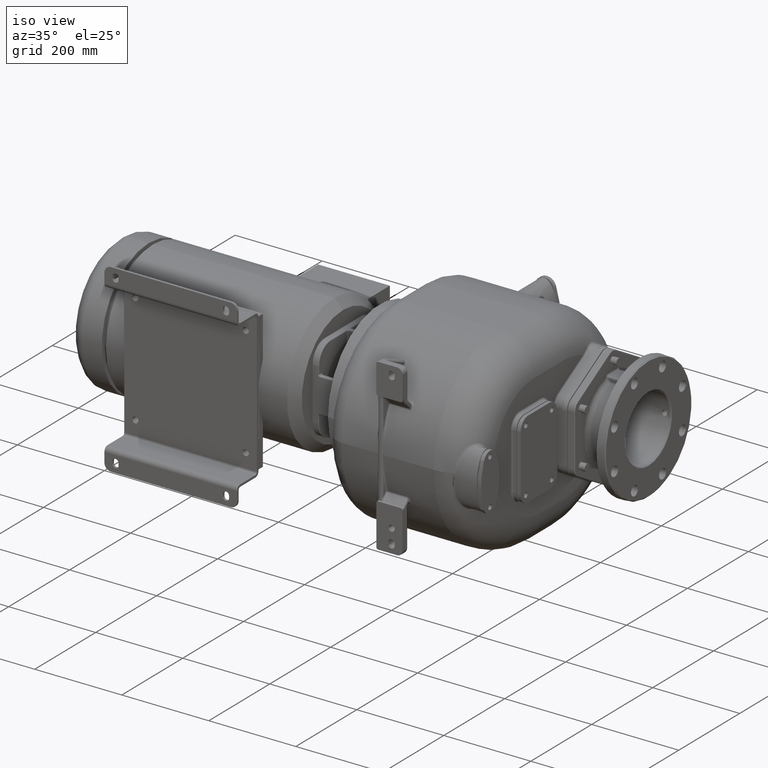
[diagram: clean part render]
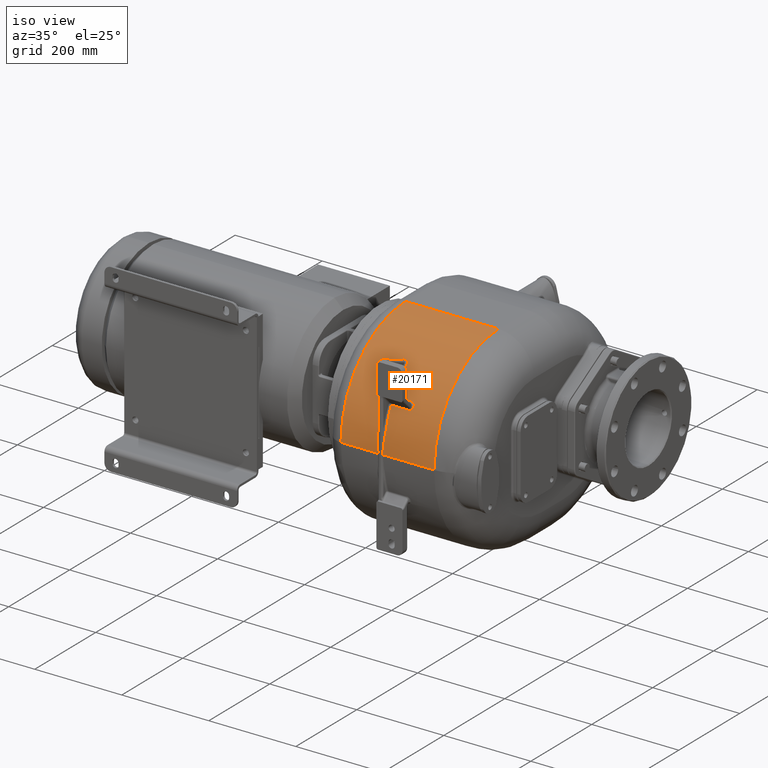
[diagram: same view with one face highlighted and labeled with its STEP entity id]
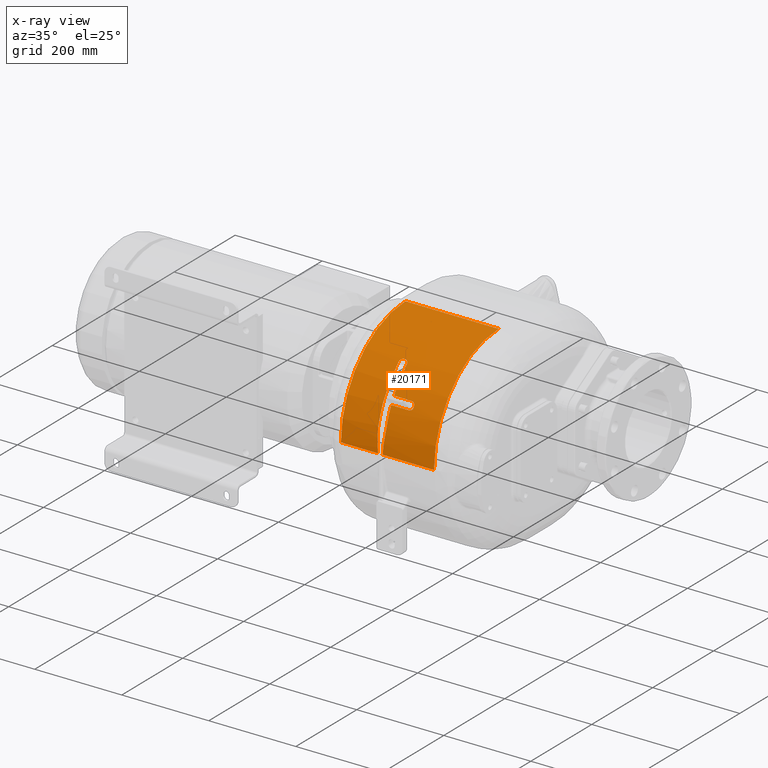
[diagram: x-ray of the same camera — body ghosted, the highlighted face saturated]
A machine part, iso view. The second image highlights one B-rep face of the part: STEP entity #20171.
The next image is the same camera in x-ray: the body ghosted, the highlighted face saturated — about 0% of this face is hidden behind the body in this view.
In plain terms, the highlighted cylindrical surface (partial cylindrical patch) has radius 212 mm, axis along (-1, 0, 0).
Its self-contained STEP definition (entity closure, byte-faithful):
#2213=DIRECTION('',(-9.999999999999E-1,-3.922041858622E-7,-4.513141593375E-11));
#2214=VECTOR('',#2213,8.512701665594E1);
#2215=CARTESIAN_POINT('',(-3.487298334407E1,5.000033387172E0,
-1.299999999617E1));
#2216=LINE('',#2215,#2214);
#2217=CARTESIAN_POINT('',(-1.2E2,2.17E2,-1.3E1));
#2218=DIRECTION('',(-1.E0,0.E0,0.E0));
#2219=DIRECTION('',(0.E0,-1.E0,0.E0));
#2220=AXIS2_PLACEMENT_3D('',#2217,#2218,#2219);
#2222=CARTESIAN_POINT('',(9.4E1,2.17E2,-1.3E1));
#2223=DIRECTION('',(1.E0,0.E0,0.E0));
#2224=DIRECTION('',(0.E0,0.E0,1.E0));
#2225=AXIS2_PLACEMENT_3D('',#2222,#2223,#2224);
#2227=DIRECTION('',(-1.E0,2.893217573782E-7,-2.821944856275E-11));
#2228=VECTOR('',#2227,1.181270166560E2);
#2229=CARTESIAN_POINT('',(9.4E1,5.E0,-1.300000000004E1));
#2230=LINE('',#2229,#2228);
#2231=CARTESIAN_POINT('',(-2.412701665602E1,5.000034176716E0,
-1.300000000338E1));
#2232=CARTESIAN_POINT('',(-2.412677425144E1,5.000064411701E0,
-1.237162745277E1));
#2233=CARTESIAN_POINT('',(-2.411535723867E1,5.005587830284E0,
-1.109724350928E1));
#2234=CARTESIAN_POINT('',(-2.406714353590E1,5.031925356394E0,
-9.147282612950E0));
#2235=CARTESIAN_POINT('',(-2.398490606292E1,5.078257220314E0,
-7.116007982804E0));
#2236=CARTESIAN_POINT('',(-2.386522206394E1,5.148100437059E0,
-4.975580684508E0));
#2237=CARTESIAN_POINT('',(-2.370355654741E1,5.246141662673E0,
-2.696057732538E0));
#2238=CARTESIAN_POINT('',(-2.349573835312E1,5.379657219867E0,
-2.315929024144E-1));
#2239=CARTESIAN_POINT('',(-2.323742179956E1,5.558259210553E0,2.462465935249E0));
#2240=CARTESIAN_POINT('',(-2.292451495860E1,5.796181275642E0,5.443850500275E0));
#2241=CARTESIAN_POINT('',(-2.256987694279E1,6.097435990249E0,8.625108674658E0));
#2242=CARTESIAN_POINT('',(-2.219588249925E1,6.457837124087E0,1.189250414593E1));
#2243=CARTESIAN_POINT('',(-2.182355145446E1,6.869646889473E0,1.515612858986E1));
#2244=CARTESIAN_POINT('',(-2.147244776413E1,7.319041217836E0,1.832379331602E1));
#2245=CARTESIAN_POINT('',(-2.115325002567E1,7.795832158027E0,2.136023318684E1));
#2246=CARTESIAN_POINT('',(-2.087127109073E1,8.292052318312E0,2.425216008936E1));
#2247=CARTESIAN_POINT('',(-2.062915357448E1,8.801257045566E0,2.699686308782E1));
#2248=CARTESIAN_POINT('',(-2.042756480443E1,9.318034853362E0,2.959600620637E1));
#2249=CARTESIAN_POINT('',(-2.026618323551E1,9.837876736388E0,3.205381006348E1));
#2250=CARTESIAN_POINT('',(-2.014390945827E1,1.035683111288E1,3.437491595962E1));
#2251=CARTESIAN_POINT('',(-2.005924917253E1,1.087114337286E1,3.656290352264E1));
#2252=CARTESIAN_POINT('',(-2.001031968690E1,1.137735410997E1,3.862111284008E1));
#2253=CARTESIAN_POINT('',(-1.999999281673E1,1.170766018576E1,3.990998583612E1));
#2254=CARTESIAN_POINT('',(-2.000000000003E1,1.187037656974E1,4.053349301459E1));
#2256=CARTESIAN_POINT('',(-2.E1,2.17E2,-1.3E1));
#2257=DIRECTION('',(-1.E0,0.E0,0.E0));
#2258=DIRECTION('',(0.E0,-9.675925925926E-1,2.525164841351E-1));
#2259=AXIS2_PLACEMENT_3D('',#2256,#2257,#2258);
#2261=DIRECTION('',(9.999999999975E-1,-2.003315182879E-6,1.009970252130E-6));
#2262=VECTOR('',#2261,4.100000002440E1);
#2263=CARTESIAN_POINT('',(-2.E1,2.769021856251E1,8.242435041482E1));
#2264=LINE('',#2263,#2262);
#2265=CARTESIAN_POINT('',(2.100000002430E1,2.769013642659E1,8.242439182360E1));
#2266=CARTESIAN_POINT('',(2.109300576867E1,2.769013946063E1,8.242437055612E1));
#2267=CARTESIAN_POINT('',(2.127962382726E1,2.769189080320E1,8.242758582931E1));
#2268=CARTESIAN_POINT('',(2.156170637136E1,2.769862104190E1,8.244104074505E1));
#2269=CARTESIAN_POINT('',(2.184493863127E1,2.771023700079E1,8.246404985416E1));
#2270=CARTESIAN_POINT('',(2.212863502047E1,2.772667185530E1,8.249663938084E1));
#2271=CARTESIAN_POINT('',(2.241203433552E1,2.774796142819E1,8.253882316192E1));
#2272=CARTESIAN_POINT('',(2.269440190692E1,2.777405294226E1,8.259049275679E1));
#2273=CARTESIAN_POINT('',(2.297500795991E1,2.780489637953E1,8.265152669118E1));
#2274=CARTESIAN_POINT('',(2.325308994288E1,2.784041311955E1,8.272174793532E1));
#2275=CARTESIAN_POINT('',(2.352823343610E1,2.788055827719E1,8.280104226065E1));
#2276=CARTESIAN_POINT('',(2.380009588734E1,2.792530656670E1,8.288933153921E1));
#2277=CARTESIAN_POINT('',(2.406829487834E1,2.797463229748E1,8.298653390671E1));
#2278=CARTESIAN_POINT('',(2.433248565283E1,2.802854019940E1,8.309262459145E1));
#2279=CARTESIAN_POINT('',(2.459263923461E1,2.808703679564E1,8.320757926381E1));
#2280=CARTESIAN_POINT('',(2.484869084842E1,2.815011017752E1,8.333133451695E1));
#2281=CARTESIAN_POINT('',(2.510061514790E1,2.821779661157E1,8.346391845280E1));
#2282=CARTESIAN_POINT('',(2.534793853888E1,2.829002955504E1,8.360515488528E1));
#2283=CARTESIAN_POINT('',(2.558999630007E1,2.836667091799E1,8.375472646364E1));
#2284=CARTESIAN_POINT('',(2.582617793122E1,2.844757639330E1,8.391230329438E1));
#2285=CARTESIAN_POINT('',(2.605591305350E1,2.853258886942E1,8.407753080825E1));
#2286=CARTESIAN_POINT('',(2.627901898315E1,2.862170074547E1,8.425034461750E1));
#2287=CARTESIAN_POINT('',(2.649531924484E1,2.871488729278E1,8.443064527765E1));
#2288=CARTESIAN_POINT('',(2.670471961568E1,2.881213145989E1,8.461834673342E1));
#2289=CARTESIAN_POINT('',(2.690692671967E1,2.891335046959E1,8.481323492863E1));
#2290=CARTESIAN_POINT('',(2.710151137672E1,2.901838087778E1,8.501494113519E1));
#2291=CARTESIAN_POINT('',(2.728808932551E1,2.912706389510E1,8.522310735834E1));
#2292=CARTESIAN_POINT('',(2.746627656780E1,2.923922211475E1,8.543734214313E1));
#2293=CARTESIAN_POINT('',(2.763581067328E1,2.935474008828E1,8.565737457966E1));
#2294=CARTESIAN_POINT('',(2.779641726124E1,2.947350456483E1,8.588293938124E1));
#2295=CARTESIAN_POINT('',(2.794785607671E1,2.959539817814E1,8.611376515421E1));
#2296=CARTESIAN_POINT('',(2.808993723250E1,2.972028071056E1,8.634953931403E1));
#2297=CARTESIAN_POINT('',(2.822243550209E1,2.984798289412E1,8.658989732943E1));
#2298=CARTESIAN_POINT('',(2.834514228541E1,2.997833254975E1,8.683447271049E1));
#2299=CARTESIAN_POINT('',(2.845785612075E1,3.011115178293E1,8.708289196431E1));
#2300=CARTESIAN_POINT('',(2.856037723862E1,3.024624757566E1,8.733475742795E1));
#2301=CARTESIAN_POINT('',(2.865251737336E1,3.038341873998E1,8.758966076425E1));
#2302=CARTESIAN_POINT('',(2.873409764708E1,3.052245957089E1,8.784719009992E1));
#2303=CARTESIAN_POINT('',(2.880496853396E1,3.066316039514E1,8.810693114042E1));
#2304=CARTESIAN_POINT('',(2.886505443869E1,3.080531006751E1,8.836847242988E1));
#2305=CARTESIAN_POINT('',(2.891428587463E1,3.094869318828E1,8.863139852648E1));
#2306=CARTESIAN_POINT('',(2.895261532087E1,3.109309117104E1,8.889529890708E1));
#2307=CARTESIAN_POINT('',(2.897999257722E1,3.123828349406E1,8.915974498661E1));
#2308=CARTESIAN_POINT('',(2.899644740496E1,3.138404611709E1,8.942438189462E1));
#2309=CARTESIAN_POINT('',(2.900000446744E1,3.148145609983E1,8.960052254986E1));
#2310=CARTESIAN_POINT('',(2.899999999973E1,3.153019789379E1,8.968857484883E1));
#2312=CARTESIAN_POINT('',(2.9E1,2.17E2,-1.3E1));
#2313=DIRECTION('',(-1.E0,0.E0,0.E0));
#2314=DIRECTION('',(0.E0,-8.748576457011E-1,4.843801190784E-1));
#2315=AXIS2_PLACEMENT_3D('',#2312,#2313,#2314);
#2317=CARTESIAN_POINT('',(2.899999999998E1,3.252667015918E1,9.146814129177E1));
#2318=CARTESIAN_POINT('',(2.900003071213E1,3.257569402916E1,9.155468504804E1));
#2319=CARTESIAN_POINT('',(2.899647680225E1,3.267388370671E1,9.172780947850E1));
#2320=CARTESIAN_POINT('',(2.898029898864E1,3.282187357057E1,9.198784308193E1));
#2321=CARTESIAN_POINT('',(2.895321536720E1,3.297003653321E1,9.224733882145E1));
#2322=CARTESIAN_POINT('',(2.891528449959E1,3.311804513091E1,9.250571571432E1));
#2323=CARTESIAN_POINT('',(2.886659981461E1,3.326551861548E1,9.276232471685E1));
#2324=CARTESIAN_POINT('',(2.880731791595E1,3.341207762850E1,9.301652305036E1));
#2325=CARTESIAN_POINT('',(2.873762389401E1,3.355740245065E1,9.326778047908E1));
#2326=CARTESIAN_POINT('',(2.865762347228E1,3.370137158997E1,9.351591389640E1));
#2327=CARTESIAN_POINT('',(2.856742862142E1,3.384382702495E1,9.376067944499E1));
#2328=CARTESIAN_POINT('',(2.846709676840E1,3.398465915033E1,9.400191894171E1));
#2329=CARTESIAN_POINT('',(2.835667786110E1,3.412381299177E1,9.423956893640E1));
#2330=CARTESIAN_POINT('',(2.823621918487E1,3.426125499307E1,9.447360256879E1));
#2331=CARTESIAN_POINT('',(2.810587882856E1,3.439676589667E1,9.470367787615E1));
#2332=CARTESIAN_POINT('',(2.796600796244E1,3.452996227021E1,9.492917913361E1));
#2333=CARTESIAN_POINT('',(2.781698929852E1,3.466049386639E1,9.514955316310E1));
#2334=CARTESIAN_POINT('',(2.765915256588E1,3.478810143702E1,9.536440513644E1));
#2335=CARTESIAN_POINT('',(2.749277121964E1,3.491258751967E1,9.557344697894E1));
#2336=CARTESIAN_POINT('',(2.731817788704E1,3.503372789978E1,9.577634797927E1));
#2337=CARTESIAN_POINT('',(2.713542889917E1,3.515148391044E1,9.597308927214E1));
#2338=CARTESIAN_POINT('',(2.694449469843E1,3.526585220281E1,9.616370956678E1));
#2339=CARTESIAN_POINT('',(2.674539378231E1,3.537683813537E1,9.634826026046E1));
#2340=CARTESIAN_POINT('',(2.653841749238E1,3.548425460236E1,9.652647207763E1));
#2341=CARTESIAN_POINT('',(2.632389928888E1,3.558790571776E1,9.669806253179E1));
#2342=CARTESIAN_POINT('',(2.610218174647E1,3.568759765190E1,9.686275337527E1));
#2343=CARTESIAN_POINT('',(2.587382970491E1,3.578305706537E1,9.702013612103E1));
#2344=CARTESIAN_POINT('',(2.563946122986E1,3.587402683179E1,9.716983043139E1));
#2345=CARTESIAN_POINT('',(2.539961704887E1,3.596031653644E1,9.731156640975E1));
#2346=CARTESIAN_POINT('',(2.515427748168E1,3.604194018687E1,9.744540870030E1));
#2347=CARTESIAN_POINT('',(2.490342696093E1,3.611886651521E1,9.757134510979E1));
#2348=CARTESIAN_POINT('',(2.464713600438E1,3.619108000313E1,9.768938705662E1));
#2349=CARTESIAN_POINT('',(2.438563512310E1,3.625850368498E1,9.779944342210E1));
#2350=CARTESIAN_POINT('',(2.411903936263E1,3.632107481649E1,9.790144448452E1));
#2351=CARTESIAN_POINT('',(2.384783409492E1,3.637863515596E1,9.799516310301E1));
#2352=CARTESIAN_POINT('',(2.357292607950E1,3.643096746391E1,9.808027491582E1));
#2353=CARTESIAN_POINT('',(2.329527969978E1,3.647789988062E1,9.815652807858E1));
#2354=CARTESIAN_POINT('',(2.301528397107E1,3.651939312480E1,9.822388389708E1));
#2355=CARTESIAN_POINT('',(2.273293672181E1,3.655545580860E1,9.828237883627E1));
#2356=CARTESIAN_POINT('',(2.244827253503E1,3.658605593047E1,9.833197926503E1));
#2357=CARTESIAN_POINT('',(2.216152684918E1,3.661115448759E1,9.837264215800E1));
#2358=CARTESIAN_POINT('',(2.187302459181E1,3.663073437324E1,9.840433933323E1));
#2359=CARTESIAN_POINT('',(2.158308035536E1,3.664475470536E1,9.842706740631E1));
#2360=CARTESIAN_POINT('',(2.129197446042E1,3.665323365272E1,9.844066847361E1));
#2361=CARTESIAN_POINT('',(2.109742144004E1,3.665505242121E1,9.844391325200E1));
#2362=CARTESIAN_POINT('',(2.099999998002E1,3.665506377796E1,9.844391281594E1));
#2364=DIRECTION('',(-9.999999999971E-1,2.041802818780E-6,-1.261698355727E-6));
#2365=VECTOR('',#2364,4.099999998014E1);
#2366=CARTESIAN_POINT('',(2.099999998002E1,3.665506377796E1,9.844391281594E1));
#2367=LINE('',#2366,#2365);
#2368=CARTESIAN_POINT('',(-2.E1,2.17E2,-1.3E1));
#2369=DIRECTION('',(-1.E0,0.E0,0.E0));
#2370=DIRECTION('',(0.E0,-8.506832665458E-1,5.256785900329E-1));
#2371=AXIS2_PLACEMENT_3D('',#2368,#2369,#2370);
#2373=CARTESIAN_POINT('',(-2.000000000424E1,7.867629360068E1,1.476564870725E2));
#2374=CARTESIAN_POINT('',(-2.000000300508E1,7.875929237307E1,1.477279553283E2));
#2375=CARTESIAN_POINT('',(-2.000356006508E1,7.892537370747E1,1.478709224220E2));
#2376=CARTESIAN_POINT('',(-2.002070724317E1,7.917542919705E1,1.480851279639E2));
#2377=CARTESIAN_POINT('',(-2.004912358653E1,7.942550598528E1,1.482987787121E2));
#2378=CARTESIAN_POINT('',(-2.008891918470E1,7.967522689771E1,1.485114299994E2));
#2379=CARTESIAN_POINT('',(-2.013997137254E1,7.992407177537E1,1.487226802361E2));
#2380=CARTESIAN_POINT('',(-2.020219071558E1,8.017154839855E1,1.489321140338E2));
#2381=CARTESIAN_POINT('',(-2.027543883501E1,8.041716085607E1,1.491393293652E2));
#2382=CARTESIAN_POINT('',(-2.035954007576E1,8.066041002122E1,1.493439234135E2));
#2383=CARTESIAN_POINT('',(-2.045430614135E1,8.090087588150E1,1.495455652687E2));
#2384=CARTESIAN_POINT('',(-2.055953843785E1,8.113818546995E1,1.497439668599E2));
#2385=CARTESIAN_POINT('',(-2.067500944388E1,8.137196859610E1,1.499388457171E2));
#2386=CARTESIAN_POINT('',(-2.080046911001E1,8.160187090486E1,1.501299354936E2));
#2387=CARTESIAN_POINT('',(-2.093557386386E1,8.182745998013E1,1.503169079600E2));
#2388=CARTESIAN_POINT('',(-2.107996010618E1,8.204829657688E1,1.504994325632E2));
#2389=CARTESIAN_POINT('',(-2.123322211094E1,8.226392717712E1,1.506771701274E2));
#2390=CARTESIAN_POINT('',(-2.139496609971E1,8.247398502500E1,1.508498558116E2));
#2391=CARTESIAN_POINT('',(-2.156490708649E1,8.267827486695E1,1.510173671523E2));
#2392=CARTESIAN_POINT('',(-2.174274564514E1,8.287659205087E1,1.511795743359E2));
#2393=CARTESIAN_POINT('',(-2.192819398809E1,8.306876141227E1,1.513363719581E2));
#2394=CARTESIAN_POINT('',(-2.212093207052E1,8.325459330801E1,1.514876428396E2));
#2395=CARTESIAN_POINT('',(-2.232061867215E1,8.343390817069E1,1.516332780162E2));
#2396=CARTESIAN_POINT('',(-2.252690223866E1,8.360654309691E1,1.517731818474E2));
#2397=CARTESIAN_POINT('',(-2.273939500535E1,8.377230617009E1,1.519072347932E2));
#2398=CARTESIAN_POINT('',(-2.295748559067E1,8.393085152211E1,1.520351929253E2));
#2399=CARTESIAN_POINT('',(-2.318053902209E1,8.408186894491E1,1.521568415867E2));
#2400=CARTESIAN_POINT('',(-2.340785375583E1,8.422505965342E1,1.522719753555E2));
#2401=CARTESIAN_POINT('',(-2.363894248897E1,8.436031733052E1,1.523805430840E2));
#2402=CARTESIAN_POINT('',(-2.387400646042E1,8.448791323641E1,1.524827944022E2));
#2403=CARTESIAN_POINT('',(-2.411318216963E1,8.460800680410E1,1.525788861486E2));
#2404=CARTESIAN_POINT('',(-2.435683606127E1,8.472078010397E1,1.526689906940E2));
#2405=CARTESIAN_POINT('',(-2.460462803171E1,8.482617066366E1,1.527530828151E2));
#2406=CARTESIAN_POINT('',(-2.485565920977E1,8.492391841487E1,1.528309786126E2));
#2407=CARTESIAN_POINT('',(-2.510916457280E1,8.501384943203E1,1.529025619859E2));
#2408=CARTESIAN_POINT('',(-2.536430464549E1,8.509580513734E1,1.529677278262E2));
#2409=CARTESIAN_POINT('',(-2.562089836156E1,8.516985370360E1,1.530265496628E2));
#2410=CARTESIAN_POINT('',(-2.587886715119E1,8.523604216770E1,1.530790821241E2));
#2411=CARTESIAN_POINT('',(-2.613814312230E1,8.529438410514E1,1.531253512666E2));
#2412=CARTESIAN_POINT('',(-2.639875631103E1,8.534483926427E1,1.531653389082E2));
#2413=CARTESIAN_POINT('',(-2.666090716110E1,8.538747176003E1,1.531991067760E2));
#2414=CARTESIAN_POINT('',(-2.692469402898E1,8.542247315485E1,1.532268192265E2));
#2415=CARTESIAN_POINT('',(-2.719027714310E1,8.544989264548E1,1.532485120796E2));
#2416=CARTESIAN_POINT('',(-2.745783499320E1,8.546977178165E1,1.532642651316E2));
#2417=CARTESIAN_POINT('',(-2.772753475144E1,8.548180950227E1,1.532736922518E2));
#2418=CARTESIAN_POINT('',(-2.790892200939E1,8.548497917117E1,1.532764351159E2));
#2419=CARTESIAN_POINT('',(-2.800000007E1,8.548505803682E1,1.532764531046E2));
#2421=DIRECTION('',(-9.999999999270E-1,-7.499656473425E-6,9.477488548443E-6));
#2422=VECTOR('',#2421,3.000000021987E0);
#2423=CARTESIAN_POINT('',(-2.800000007E1,8.548505803682E1,1.532764531046E2));
#2424=LINE('',#2423,#2422);
#2425=CARTESIAN_POINT('',(-3.100000009177E1,8.548503553785E1,1.532764815371E2));
#2426=CARTESIAN_POINT('',(-3.108533750128E1,8.548510486051E1,1.532764973115E2));
#2427=CARTESIAN_POINT('',(-3.125709387137E1,8.548239267476E1,1.532741707689E2));
#2428=CARTESIAN_POINT('',(-3.151838619277E1,8.547171619855E1,1.532657986314E2));
#2429=CARTESIAN_POINT('',(-3.178210023370E1,8.545286775719E1,1.532508673783E2));
#2430=CARTESIAN_POINT('',(-3.204741836309E1,8.542599006075E1,1.532296026231E2));
#2431=CARTESIAN_POINT('',(-3.231343360197E1,8.539106068980E1,1.532019488790E2));
#2432=CARTESIAN_POINT('',(-3.257925295759E1,8.534817055429E1,1.531679783077E2));
#2433=CARTESIAN_POINT('',(-3.284399693382E1,8.529743235899E1,1.531277679446E2));
#2434=CARTESIAN_POINT('',(-3.310670331137E1,8.523902954687E1,1.530814521953E2));
#2435=CARTESIAN_POINT('',(-3.336701205350E1,8.517303652702E1,1.530290767980E2));
#2436=CARTESIAN_POINT('',(-3.362473306884E1,8.509944973586E1,1.529706241857E2));
#2437=CARTESIAN_POINT('',(-3.387957420151E1,8.501822950926E1,1.529060462723E2));
#2438=CARTESIAN_POINT('',(-3.413130216124E1,8.492932939608E1,1.528352877051E2));
#2439=CARTESIAN_POINT('',(-3.438028061783E1,8.483266996003E1,1.527582648904E2));
#2440=CARTESIAN_POINT('',(-3.462673631354E1,8.472811059340E1,1.526748433028E2));
#2441=CARTESIAN_POINT('',(-3.487095966955E1,8.461540581198E1,1.525848020596E2));
#2442=CARTESIAN_POINT('',(-3.511263964513E1,8.449450898982E1,1.524880762438E2));
#2443=CARTESIAN_POINT('',(-3.535082592995E1,8.436572122109E1,1.523848775594E2));
#2444=CARTESIAN_POINT('',(-3.558473346457E1,8.422932723211E1,1.522754041101E2));
#2445=CARTESIAN_POINT('',(-3.581348965206E1,8.408572998745E1,1.521599488790E2));
#2446=CARTESIAN_POINT('',(-3.603676196891E1,8.393502612619E1,1.520385585651E2));
#2447=CARTESIAN_POINT('',(-3.625446361375E1,8.377717691760E1,1.519111692982E2));
#2448=CARTESIAN_POINT('',(-3.646646200593E1,8.361216750878E1,1.517777346102E2));
#2449=CARTESIAN_POINT('',(-3.667257820882E1,8.343999389593E1,1.516382149682E2));
#2450=CARTESIAN_POINT('',(-3.687243560646E1,8.326081487587E1,1.514927014286E2));
#2451=CARTESIAN_POINT('',(-3.706566657579E1,8.307480405723E1,1.513412966318E2));
#2452=CARTESIAN_POINT('',(-3.725190547389E1,8.288214716559E1,1.511841127403E2));
#2453=CARTESIAN_POINT('',(-3.743073016039E1,8.268310291470E1,1.510213214816E2));
#2454=CARTESIAN_POINT('',(-3.760164365558E1,8.247805252799E1,1.508531957916E2));
#2455=CARTESIAN_POINT('',(-3.776420271587E1,8.226735660553E1,1.506799934742E2));
#2456=CARTESIAN_POINT('',(-3.791797958341E1,8.205137991253E1,1.505019776439E2));
#2457=CARTESIAN_POINT('',(-3.806266546398E1,8.183040248410E1,1.503193434160E2));
#2458=CARTESIAN_POINT('',(-3.819798605969E1,8.160468925606E1,1.501322748147E2));
#2459=CARTESIAN_POINT('',(-3.832367492834E1,8.137452887147E1,1.499409771283E2));
#2460=CARTESIAN_POINT('',(-3.843947266046E1,8.114022867767E1,1.497456730498E2));
#2461=CARTESIAN_POINT('',(-3.854507189060E1,8.090224907329E1,1.495467156226E2));
#2462=CARTESIAN_POINT('',(-3.864020126773E1,8.066106119659E1,1.493444708857E2));
#2463=CARTESIAN_POINT('',(-3.872462625339E1,8.041714732317E1,1.491393184772E2));
#2464=CARTESIAN_POINT('',(-3.879811084529E1,8.017098578219E1,1.489316391148E2));
#2465=CARTESIAN_POINT('',(-3.886045693390E1,7.992309254300E1,1.487218503321E2));
#2466=CARTESIAN_POINT('',(-3.891152188574E1,7.967399002763E1,1.485103792618E2));
#2467=CARTESIAN_POINT('',(-3.895121893412E1,7.942419965093E1,1.482976616211E2));
#2468=CARTESIAN_POINT('',(-3.897949478831E1,7.917426896931E1,1.480841456988E2));
#2469=CARTESIAN_POINT('',(-3.899640926628E1,7.892464558532E1,1.478702570802E2));
#2470=CARTESIAN_POINT('',(-3.900002108310E1,7.875896946983E1,1.477277634023E2));
#2471=CARTESIAN_POINT('',(-3.899999999973E1,7.867623511742E1,1.476565550205E2));
#2473=CARTESIAN_POINT('',(-3.9E1,2.17E2,-1.3E1));
#2474=DIRECTION('',(1.E0,0.E0,0.E0));
#2475=DIRECTION('',(0.E0,-6.524706428670E-1,7.578140010561E-1));
#2476=AXIS2_PLACEMENT_3D('',#2473,#2474,#2475);
#2478=CARTESIAN_POINT('',(-3.899999999996E1,1.187037643904E1,4.053349305294E1));
#2479=CARTESIAN_POINT('',(-3.900000907332E1,1.170769566159E1,3.991011959754E1));
#2480=CARTESIAN_POINT('',(-3.898969232779E1,1.137745609296E1,3.862151447746E1));
#2481=CARTESIAN_POINT('',(-3.894076674609E1,1.087134142215E1,3.656372079811E1));
#2482=CARTESIAN_POINT('',(-3.885615445304E1,1.035710850873E1,3.437611984479E1));
#2483=CARTESIAN_POINT('',(-3.873389735021E1,9.838209090207E0,3.205533393687E1));
#2484=CARTESIAN_POINT('',(-3.857256830406E1,9.318393911111E0,2.959775051926E1));
#2485=CARTESIAN_POINT('',(-3.837100986120E1,8.801651428835E0,2.699891335687E1));
#2486=CARTESIAN_POINT('',(-3.812893534273E1,8.292445202811E0,2.425434746463E1));
#2487=CARTESIAN_POINT('',(-3.784702461781E1,7.796273948046E0,2.136293112533E1));
#2488=CARTESIAN_POINT('',(-3.752778905784E1,7.319383635696E0,1.832606043922E1));
#2489=CARTESIAN_POINT('',(-3.717688023497E1,6.870138747879E0,1.515979033307E1));
#2490=CARTESIAN_POINT('',(-3.680434859035E1,6.458094466158E0,1.189475833157E1));
#2491=CARTESIAN_POINT('',(-3.643040314833E1,6.097664133206E0,8.627225481505E0));
#2492=CARTESIAN_POINT('',(-3.607591983815E1,5.796557127237E0,5.448192840503E0));
#2493=CARTESIAN_POINT('',(-3.576257875842E1,5.558237787799E0,2.462524712840E0));
#2494=CARTESIAN_POINT('',(-3.550395899935E1,5.379398930726E0,
-2.357358934041E-1));
#2495=CARTESIAN_POINT('',(-3.529616261380E1,5.245935876339E0,
-2.700373205626E0));
#2496=CARTESIAN_POINT('',(-3.513456714352E1,5.147995887590E0,
-4.978480077484E0));
#2497=CARTESIAN_POINT('',(-3.501489865767E1,5.078217722262E0,
-7.117563784723E0));
#2498=CARTESIAN_POINT('',(-3.493274438260E1,5.031914943044E0,
-9.147961815581E0));
#2499=CARTESIAN_POINT('',(-3.488460370730E1,5.005588489130E0,
-1.109738425132E1));
#2500=CARTESIAN_POINT('',(-3.487321845199E1,5.000062699675E0,
-1.237163655648E1));
#2501=CARTESIAN_POINT('',(-3.487298334407E1,5.000033387172E0,
-1.299999999617E1));
#2771=CARTESIAN_POINT('',(-2.412701665602E1,5.000034176716E0,
-1.300000000338E1));
#10621=DIRECTION('',(1.E0,2.007847678359E-12,0.E0));
#10622=VECTOR('',#10621,2.14E2);
#10623=CARTESIAN_POINT('',(-1.2E2,2.17E2,1.99E2));
#10624=LINE('',#10623,#10622);
#15757=CARTESIAN_POINT('',(-1.2E2,2.17E2,1.99E2));
#15758=CARTESIAN_POINT('',(9.4E1,2.170000000004E2,1.99E2));
#15759=VERTEX_POINT('',#15757);
#15760=VERTEX_POINT('',#15758);
#15799=CARTESIAN_POINT('',(-1.2E2,5.E0,-1.3E1));
#15800=VERTEX_POINT('',#15799);
#15817=CARTESIAN_POINT('',(9.4E1,5.E0,-1.3E1));
#15818=VERTEX_POINT('',#15817);
#16258=CARTESIAN_POINT('',(-3.487298334407E1,5.000033387172E0,
-1.299999999617E1));
#16259=VERTEX_POINT('',#16258);
#16311=VERTEX_POINT('',#2265);
#16312=VERTEX_POINT('',#2310);
#16315=CARTESIAN_POINT('',(2.9E1,3.252667419649E1,9.146813900415E1));
#16316=VERTEX_POINT('',#16315);
#16319=VERTEX_POINT('',#2362);
#16321=CARTESIAN_POINT('',(-2.E1,3.665514749188E1,9.844386108631E1));
#16322=VERTEX_POINT('',#16321);
#16327=CARTESIAN_POINT('',(-2.E1,7.867622371219E1,1.476565682239E2));
#16328=VERTEX_POINT('',#16327);
#16331=VERTEX_POINT('',#2419);
#16333=CARTESIAN_POINT('',(-3.100000009177E1,8.548503553785E1,
1.532764815371E2));
#16334=VERTEX_POINT('',#16333);
#16335=VERTEX_POINT('',#2471);
#16336=CARTESIAN_POINT('',(-3.9E1,1.187037037037E1,4.053349463664E1));
#16337=VERTEX_POINT('',#16336);
#16370=VERTEX_POINT('',#2771);
#16372=VERTEX_POINT('',#2254);
#16374=CARTESIAN_POINT('',(-2.E1,2.769021856252E1,8.242435041483E1));
#16375=VERTEX_POINT('',#16374);
#20129=CARTESIAN_POINT('',(-1.56E2,2.17E2,-1.3E1));
#20130=DIRECTION('',(-1.E0,0.E0,0.E0));
#20131=DIRECTION('',(0.E0,0.E0,1.E0));
#20132=AXIS2_PLACEMENT_3D('',#20129,#20130,#20131);
#20133=CYLINDRICAL_SURFACE('',#20132,2.12E2);
#20135=ORIENTED_EDGE('',*,*,#20134,.T.);
#20136=ORIENTED_EDGE('',*,*,#20120,.T.);
#20138=ORIENTED_EDGE('',*,*,#20137,.T.);
#20140=ORIENTED_EDGE('',*,*,#20139,.T.);
#20142=ORIENTED_EDGE('',*,*,#20141,.T.);
#20144=ORIENTED_EDGE('',*,*,#20143,.T.);
#20146=ORIENTED_EDGE('',*,*,#20145,.T.);
#20148=ORIENTED_EDGE('',*,*,#20147,.T.);
#20150=ORIENTED_EDGE('',*,*,#20149,.T.);
#20152=ORIENTED_EDGE('',*,*,#20151,.T.);
#20154=ORIENTED_EDGE('',*,*,#20153,.T.);
#20156=ORIENTED_EDGE('',*,*,#20155,.T.);
#20158=ORIENTED_EDGE('',*,*,#20157,.T.);
#20160=ORIENTED_EDGE('',*,*,#20159,.T.);
#20162=ORIENTED_EDGE('',*,*,#20161,.T.);
#20164=ORIENTED_EDGE('',*,*,#20163,.T.);
#20166=ORIENTED_EDGE('',*,*,#20165,.T.);
#20168=ORIENTED_EDGE('',*,*,#20167,.T.);
#20169=EDGE_LOOP('',(#20135,#20136,#20138,#20140,#20142,#20144,#20146,#20148,
#20150,#20152,#20154,#20156,#20158,#20160,#20162,#20164,#20166,#20168));
#20170=FACE_OUTER_BOUND('',#20169,.F.);
#20171=ADVANCED_FACE('',(#20170),#20133,.T.);
#2221=CIRCLE('',#2220,2.12E2);
#2226=CIRCLE('',#2225,2.12E2);
#2255=B_SPLINE_CURVE_WITH_KNOTS('',3,(#2231,#2232,#2233,#2234,#2235,#2236,#2237,
#2238,#2239,#2240,#2241,#2242,#2243,#2244,#2245,#2246,#2247,#2248,#2249,#2250,
#2251,#2252,#2253,#2254),.UNSPECIFIED.,.F.,.F.,(4,1,1,1,1,1,1,1,1,1,1,1,1,1,1,1,
1,1,1,1,1,4),(0.E0,4.761904761905E-2,9.523809523810E-2,1.428571428571E-1,
1.904761904762E-1,2.380952380952E-1,2.857142857143E-1,3.333333333333E-1,
3.809523809524E-1,4.285714285714E-1,4.761904761905E-1,5.238095238095E-1,
5.714285714286E-1,6.190476190476E-1,6.666666666667E-1,7.142857142857E-1,
7.619047619048E-1,8.095238095238E-1,8.571428571429E-1,9.047619047619E-1,
9.523809523810E-1,1.E0),.UNSPECIFIED.);
#2260=CIRCLE('',#2259,2.12E2);
#2311=B_SPLINE_CURVE_WITH_KNOTS('',3,(#2265,#2266,#2267,#2268,#2269,#2270,#2271,
#2272,#2273,#2274,#2275,#2276,#2277,#2278,#2279,#2280,#2281,#2282,#2283,#2284,
#2285,#2286,#2287,#2288,#2289,#2290,#2291,#2292,#2293,#2294,#2295,#2296,#2297,
#2298,#2299,#2300,#2301,#2302,#2303,#2304,#2305,#2306,#2307,#2308,#2309,#2310),
.UNSPECIFIED.,.F.,.F.,(4,1,1,1,1,1,1,1,1,1,1,1,1,1,1,1,1,1,1,1,1,1,1,1,1,1,1,1,
1,1,1,1,1,1,1,1,1,1,1,1,1,1,1,4),(0.E0,2.325581395349E-2,4.651162790698E-2,
6.976744186047E-2,9.302325581395E-2,1.162790697674E-1,1.395348837209E-1,
1.627906976744E-1,1.860465116279E-1,2.093023255814E-1,2.325581395349E-1,
2.558139534884E-1,2.790697674419E-1,3.023255813953E-1,3.255813953488E-1,
3.488372093023E-1,3.720930232558E-1,3.953488372093E-1,4.186046511628E-1,
4.418604651163E-1,4.651162790698E-1,4.883720930233E-1,5.116279069767E-1,
5.348837209302E-1,5.581395348837E-1,5.813953488372E-1,6.046511627907E-1,
6.279069767442E-1,6.511627906977E-1,6.744186046512E-1,6.976744186047E-1,
7.209302325581E-1,7.441860465116E-1,7.674418604651E-1,7.906976744186E-1,
8.139534883721E-1,8.372093023256E-1,8.604651162791E-1,8.837209302326E-1,
9.069767441860E-1,9.302325581395E-1,9.534883720930E-1,9.767441860465E-1,1.E0),
.UNSPECIFIED.);
#2316=CIRCLE('',#2315,2.12E2);
#2363=B_SPLINE_CURVE_WITH_KNOTS('',3,(#2317,#2318,#2319,#2320,#2321,#2322,#2323,
#2324,#2325,#2326,#2327,#2328,#2329,#2330,#2331,#2332,#2333,#2334,#2335,#2336,
#2337,#2338,#2339,#2340,#2341,#2342,#2343,#2344,#2345,#2346,#2347,#2348,#2349,
#2350,#2351,#2352,#2353,#2354,#2355,#2356,#2357,#2358,#2359,#2360,#2361,#2362),
.UNSPECIFIED.,.F.,.F.,(4,1,1,1,1,1,1,1,1,1,1,1,1,1,1,1,1,1,1,1,1,1,1,1,1,1,1,1,
1,1,1,1,1,1,1,1,1,1,1,1,1,1,1,4),(0.E0,2.325581395349E-2,4.651162790698E-2,
6.976744186047E-2,9.302325581395E-2,1.162790697674E-1,1.395348837209E-1,
1.627906976744E-1,1.860465116279E-1,2.093023255814E-1,2.325581395349E-1,
2.558139534884E-1,2.790697674419E-1,3.023255813953E-1,3.255813953488E-1,
3.488372093023E-1,3.720930232558E-1,3.953488372093E-1,4.186046511628E-1,
4.418604651163E-1,4.651162790698E-1,4.883720930233E-1,5.116279069767E-1,
5.348837209302E-1,5.581395348837E-1,5.813953488372E-1,6.046511627907E-1,
6.279069767442E-1,6.511627906977E-1,6.744186046512E-1,6.976744186047E-1,
7.209302325581E-1,7.441860465116E-1,7.674418604651E-1,7.906976744186E-1,
8.139534883721E-1,8.372093023256E-1,8.604651162791E-1,8.837209302326E-1,
9.069767441860E-1,9.302325581395E-1,9.534883720930E-1,9.767441860465E-1,1.E0),
.UNSPECIFIED.);
#2372=CIRCLE('',#2371,2.12E2);
#2420=B_SPLINE_CURVE_WITH_KNOTS('',3,(#2373,#2374,#2375,#2376,#2377,#2378,#2379,
#2380,#2381,#2382,#2383,#2384,#2385,#2386,#2387,#2388,#2389,#2390,#2391,#2392,
#2393,#2394,#2395,#2396,#2397,#2398,#2399,#2400,#2401,#2402,#2403,#2404,#2405,
#2406,#2407,#2408,#2409,#2410,#2411,#2412,#2413,#2414,#2415,#2416,#2417,#2418,
#2419),.UNSPECIFIED.,.F.,.F.,(4,1,1,1,1,1,1,1,1,1,1,1,1,1,1,1,1,1,1,1,1,1,1,1,1,
1,1,1,1,1,1,1,1,1,1,1,1,1,1,1,1,1,1,1,4),(0.E0,2.272727272727E-2,
4.545454545455E-2,6.818181818182E-2,9.090909090909E-2,1.136363636364E-1,
1.363636363636E-1,1.590909090909E-1,1.818181818182E-1,2.045454545455E-1,
2.272727272727E-1,2.5E-1,2.727272727273E-1,2.954545454545E-1,3.181818181818E-1,
3.409090909091E-1,3.636363636364E-1,3.863636363636E-1,4.090909090909E-1,
4.318181818182E-1,4.545454545455E-1,4.772727272727E-1,5.E-1,5.227272727273E-1,
5.454545454545E-1,5.681818181818E-1,5.909090909091E-1,6.136363636364E-1,
6.363636363636E-1,6.590909090909E-1,6.818181818182E-1,7.045454545455E-1,
7.272727272727E-1,7.5E-1,7.727272727273E-1,7.954545454545E-1,8.181818181818E-1,
8.409090909091E-1,8.636363636364E-1,8.863636363636E-1,9.090909090909E-1,
9.318181818182E-1,9.545454545455E-1,9.772727272727E-1,1.E0),.UNSPECIFIED.);
#2472=B_SPLINE_CURVE_WITH_KNOTS('',3,(#2425,#2426,#2427,#2428,#2429,#2430,#2431,
#2432,#2433,#2434,#2435,#2436,#2437,#2438,#2439,#2440,#2441,#2442,#2443,#2444,
#2445,#2446,#2447,#2448,#2449,#2450,#2451,#2452,#2453,#2454,#2455,#2456,#2457,
#2458,#2459,#2460,#2461,#2462,#2463,#2464,#2465,#2466,#2467,#2468,#2469,#2470,
#2471),.UNSPECIFIED.,.F.,.F.,(4,1,1,1,1,1,1,1,1,1,1,1,1,1,1,1,1,1,1,1,1,1,1,1,1,
1,1,1,1,1,1,1,1,1,1,1,1,1,1,1,1,1,1,1,4),(0.E0,2.272727272727E-2,
4.545454545455E-2,6.818181818182E-2,9.090909090909E-2,1.136363636364E-1,
1.363636363636E-1,1.590909090909E-1,1.818181818182E-1,2.045454545455E-1,
2.272727272727E-1,2.5E-1,2.727272727273E-1,2.954545454545E-1,3.181818181818E-1,
3.409090909091E-1,3.636363636364E-1,3.863636363636E-1,4.090909090909E-1,
4.318181818182E-1,4.545454545455E-1,4.772727272727E-1,5.E-1,5.227272727273E-1,
5.454545454545E-1,5.681818181818E-1,5.909090909091E-1,6.136363636364E-1,
6.363636363636E-1,6.590909090909E-1,6.818181818182E-1,7.045454545455E-1,
7.272727272727E-1,7.5E-1,7.727272727273E-1,7.954545454545E-1,8.181818181818E-1,
8.409090909091E-1,8.636363636364E-1,8.863636363636E-1,9.090909090909E-1,
9.318181818182E-1,9.545454545455E-1,9.772727272727E-1,1.E0),.UNSPECIFIED.);
#2477=CIRCLE('',#2476,2.12E2);
#2502=B_SPLINE_CURVE_WITH_KNOTS('',3,(#2478,#2479,#2480,#2481,#2482,#2483,#2484,
#2485,#2486,#2487,#2488,#2489,#2490,#2491,#2492,#2493,#2494,#2495,#2496,#2497,
#2498,#2499,#2500,#2501),.UNSPECIFIED.,.F.,.F.,(4,1,1,1,1,1,1,1,1,1,1,1,1,1,1,1,
1,1,1,1,1,4),(0.E0,4.761904761905E-2,9.523809523810E-2,1.428571428571E-1,
1.904761904762E-1,2.380952380952E-1,2.857142857143E-1,3.333333333333E-1,
3.809523809524E-1,4.285714285714E-1,4.761904761905E-1,5.238095238095E-1,
5.714285714286E-1,6.190476190476E-1,6.666666666667E-1,7.142857142857E-1,
7.619047619048E-1,8.095238095238E-1,8.571428571429E-1,9.047619047619E-1,
9.523809523810E-1,1.E0),.UNSPECIFIED.);
#20120=EDGE_CURVE('',#15800,#15759,#2221,.T.);
#20134=EDGE_CURVE('',#16259,#15800,#2216,.T.);
#20137=EDGE_CURVE('',#15759,#15760,#10624,.T.);
#20139=EDGE_CURVE('',#15760,#15818,#2226,.T.);
#20141=EDGE_CURVE('',#15818,#16370,#2230,.T.);
#20143=EDGE_CURVE('',#16370,#16372,#2255,.T.);
#20145=EDGE_CURVE('',#16372,#16375,#2260,.T.);
#20147=EDGE_CURVE('',#16375,#16311,#2264,.T.);
#20149=EDGE_CURVE('',#16311,#16312,#2311,.T.);
#20151=EDGE_CURVE('',#16312,#16316,#2316,.T.);
#20153=EDGE_CURVE('',#16316,#16319,#2363,.T.);
#20155=EDGE_CURVE('',#16319,#16322,#2367,.T.);
#20157=EDGE_CURVE('',#16322,#16328,#2372,.T.);
#20159=EDGE_CURVE('',#16328,#16331,#2420,.T.);
#20161=EDGE_CURVE('',#16331,#16334,#2424,.T.);
#20163=EDGE_CURVE('',#16334,#16335,#2472,.T.);
#20165=EDGE_CURVE('',#16335,#16337,#2477,.T.);
#20167=EDGE_CURVE('',#16337,#16259,#2502,.T.);